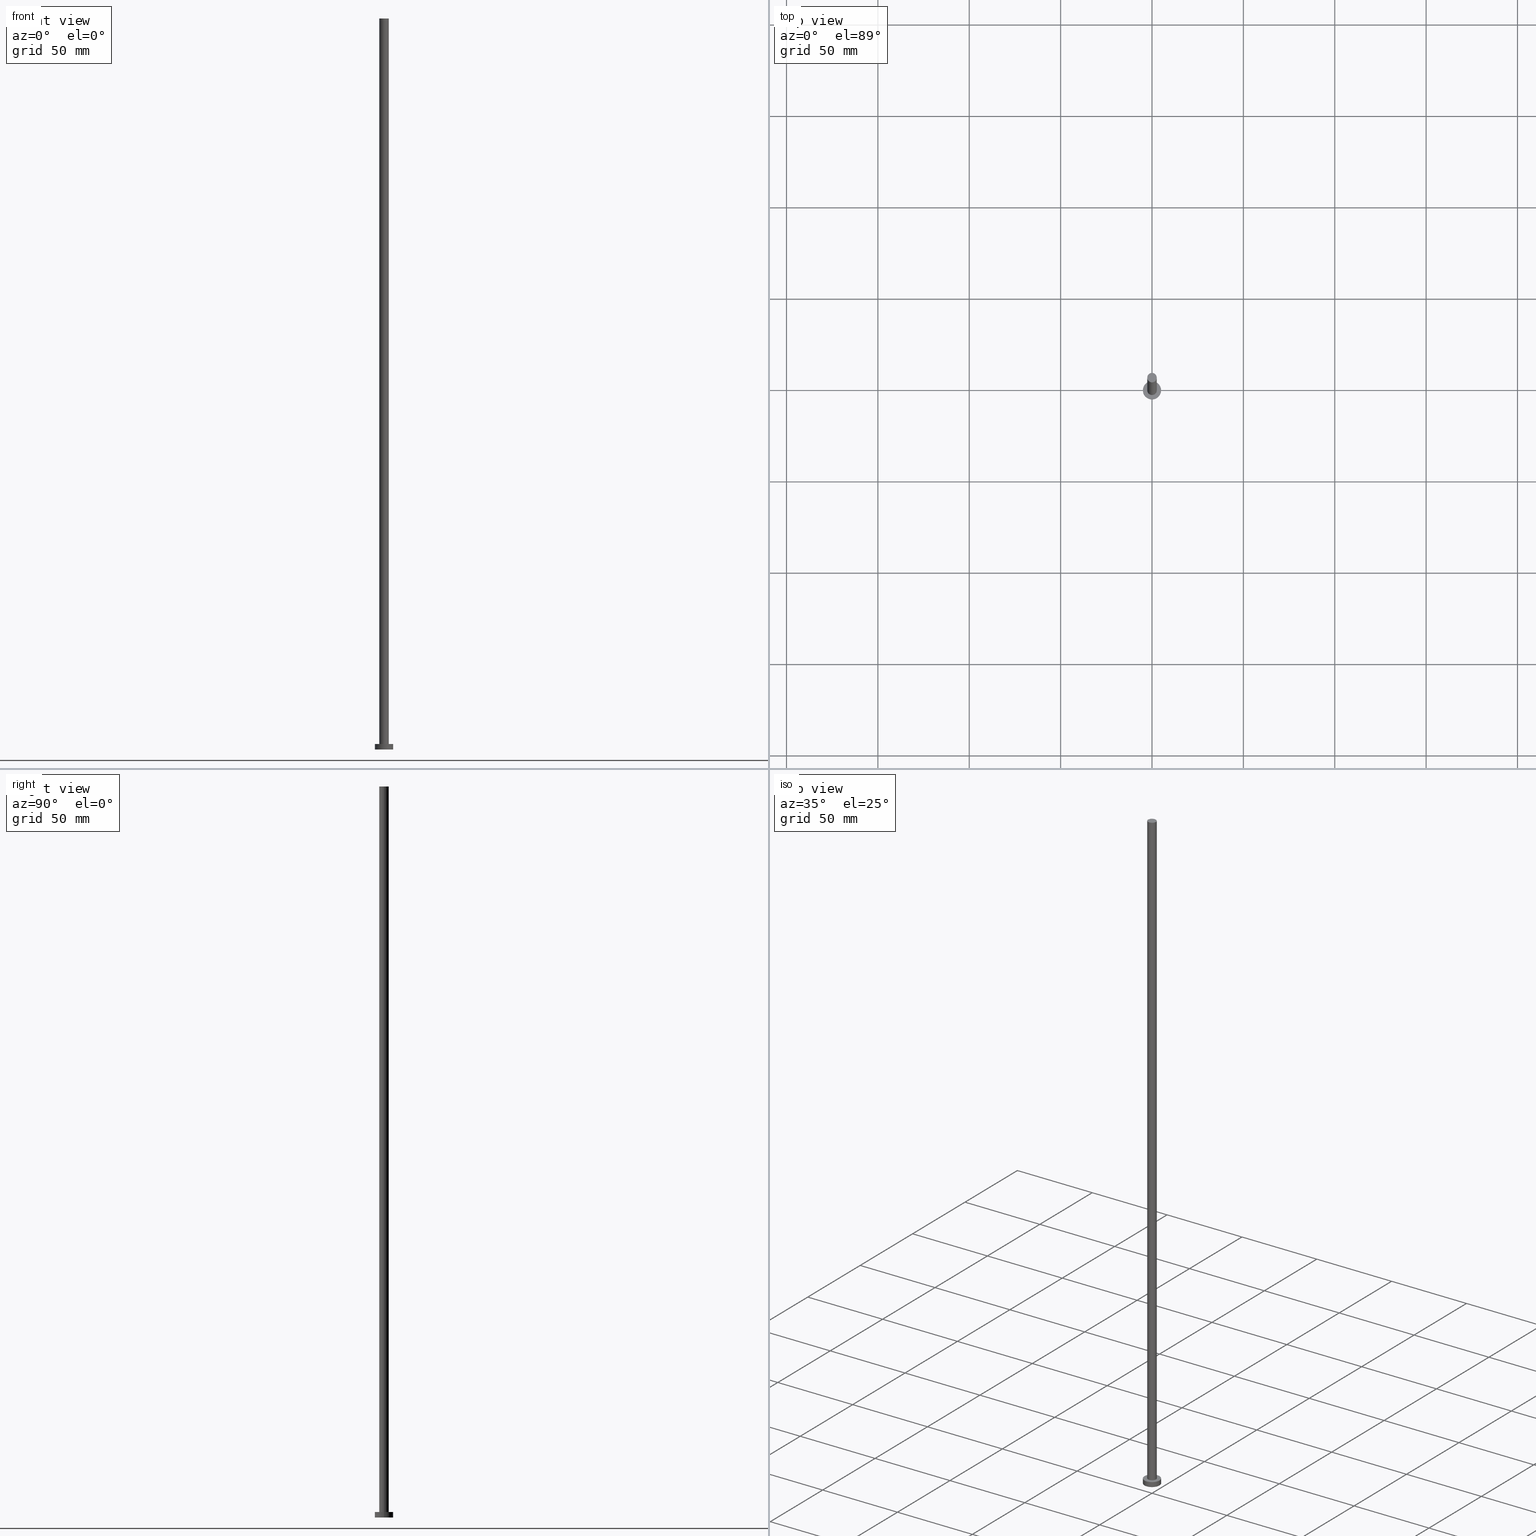
[diagram: canonical four-view strip — front | top / right | iso, engineering-drawing reading convention]
A machine part, canonical four-view strip (front | top / right | iso — engineering-drawing reading convention). The complete STEP part file that produces these views, byte-faithful:
ISO-10303-21;
HEADER;
FILE_DESCRIPTION (( 'STEP AP203' ),
    '1' );
FILE_NAME ('94fb.STEP',
    '2023-02-13T15:48:15',
    ( '' ),
    ( '' ),
    'SwSTEP 2.0',
    'SolidWorks 2019',
    '' );
FILE_SCHEMA (( 'CONFIG_CONTROL_DESIGN' ));
ENDSEC;

DATA;
#1 = SECURITY_CLASSIFICATION ( '', '', #19 ) ;
#2 = PERSON_AND_ORGANIZATION ( #212, #162 ) ;
#3 = ORIENTED_EDGE ( 'NONE', *, *, #57, .F. ) ;
#4 = FACE_OUTER_BOUND ( 'NONE', #155, .T. ) ;
#5 = ADVANCED_FACE ( 'NONE', ( #52 ), #60, .T. ) ;
#6 = CARTESIAN_POINT ( 'NONE',  ( 2.600000000000000089, 3.184081677783118191E-16, 3.000000000000000000 ) ) ;
#7 = CARTESIAN_POINT ( 'NONE',  ( 2.600000000000000089, 3.184081677783118191E-16, 400.0000000000000000 ) ) ;
#8 = CC_DESIGN_PERSON_AND_ORGANIZATION_ASSIGNMENT ( #146, #238, ( #157 ) ) ;
#9 = CARTESIAN_POINT ( 'NONE',  ( 0.000000000000000000, 0.000000000000000000, 400.0000000000000000 ) ) ;
#10 = ORIENTED_EDGE ( 'NONE', *, *, #184, .F. ) ;
#11 = VERTEX_POINT ( 'NONE', #136 ) ;
#12 = MECHANICAL_CONTEXT ( 'NONE', #145, 'mechanical' ) ;
#13 = CARTESIAN_POINT ( 'NONE',  ( -2.600000000000000089, 0.000000000000000000, 3.000000000000000000 ) ) ;
#14 = FACE_OUTER_BOUND ( 'NONE', #233, .T. ) ;
#15 = ADVANCED_BREP_SHAPE_REPRESENTATION ( '94fb', ( #84, #215 ), #46 ) ;
#16 =( LENGTH_UNIT ( ) NAMED_UNIT ( * ) SI_UNIT ( .MILLI., .METRE. ) );
#17 = CIRCLE ( 'NONE', #104, 5.000000000000000000 ) ;
#18 = CC_DESIGN_SECURITY_CLASSIFICATION ( #1, ( #157 ) ) ;
#19 = SECURITY_CLASSIFICATION_LEVEL ( 'unclassified' ) ;
#20 = DATE_TIME_ROLE ( 'classification_date' ) ;
#21 = CARTESIAN_POINT ( 'NONE',  ( 0.000000000000000000, 0.000000000000000000, 3.000000000000000000 ) ) ;
#22 = CIRCLE ( 'NONE', #148, 2.600000000000000089 ) ;
#23 = APPLICATION_PROTOCOL_DEFINITION ( 'international standard', 'config_control_design', 1994, #118 ) ;
#24 = CALENDAR_DATE ( 2023, 13, 2 ) ;
#25 = CARTESIAN_POINT ( 'NONE',  ( 0.000000000000000000, 0.000000000000000000, 400.0000000000000000 ) ) ;
#26 = CIRCLE ( 'NONE', #189, 5.000000000000000000 ) ;
#27 = ORIENTED_EDGE ( 'NONE', *, *, #125, .T. ) ;
#28 = LOCAL_TIME ( 16, 48, 15.00000000000000000, #164 ) ;
#29 = DIRECTION ( 'NONE',  ( 0.000000000000000000, 0.000000000000000000, 1.000000000000000000 ) ) ;
#30 = EDGE_CURVE ( 'NONE', #197, #114, #245, .T. ) ;
#31 = ORIENTED_EDGE ( 'NONE', *, *, #181, .T. ) ;
#32 = DIRECTION ( 'NONE',  ( 1.000000000000000000, 0.000000000000000000, 0.000000000000000000 ) ) ;
#33 = ORIENTED_EDGE ( 'NONE', *, *, #125, .F. ) ;
#34 = APPROVAL ( #106, 'NEUR�EN�' ) ;
#35 = CARTESIAN_POINT ( 'NONE',  ( 5.000000000000000000, 6.123233995736766282E-16, 3.000000000000000000 ) ) ;
#36 = ORIENTED_EDGE ( 'NONE', *, *, #181, .F. ) ;
#37 = CARTESIAN_POINT ( 'NONE',  ( 0.000000000000000000, 0.000000000000000000, 400.0000000000000000 ) ) ;
#38 = CARTESIAN_POINT ( 'NONE',  ( 0.000000000000000000, 0.000000000000000000, 400.0000000000000000 ) ) ;
#39 = EDGE_LOOP ( 'NONE', ( #10, #36, #100, #226 ) ) ;
#40 = ORIENTED_EDGE ( 'NONE', *, *, #94, .F. ) ;
#41 = VERTEX_POINT ( 'NONE', #7 ) ;
#42 = PRODUCT_DEFINITION_SHAPE ( 'NONE', 'NONE',  #79 ) ;
#43 = FACE_OUTER_BOUND ( 'NONE', #39, .T. ) ;
#44 = DIRECTION ( 'NONE',  ( -0.000000000000000000, -0.000000000000000000, -1.000000000000000000 ) ) ;
#45 = APPROVAL_STATUS ( 'not_yet_approved' ) ;
#46 =( GEOMETRIC_REPRESENTATION_CONTEXT ( 3 ) GLOBAL_UNCERTAINTY_ASSIGNED_CONTEXT ( ( #75 ) ) GLOBAL_UNIT_ASSIGNED_CONTEXT ( ( #16, #216, #80 ) ) REPRESENTATION_CONTEXT ( 'NONE', 'WORKASPACE' ) );
#47 = CALENDAR_DATE ( 2023, 13, 2 ) ;
#48 = DIRECTION ( 'NONE',  ( 0.000000000000000000, 0.000000000000000000, 1.000000000000000000 ) ) ;
#49 = EDGE_LOOP ( 'NONE', ( #201, #176 ) ) ;
#50 = DIRECTION ( 'NONE',  ( 1.000000000000000000, 0.000000000000000000, 0.000000000000000000 ) ) ;
#51 = ORIENTED_EDGE ( 'NONE', *, *, #64, .F. ) ;
#52 = FACE_OUTER_BOUND ( 'NONE', #178, .T. ) ;
#53 = CIRCLE ( 'NONE', #96, 2.600000000000000089 ) ;
#54 = VERTEX_POINT ( 'NONE', #135 ) ;
#55 = LOCAL_TIME ( 16, 48, 15.00000000000000000, #126 ) ;
#56 = PERSON_AND_ORGANIZATION ( #212, #162 ) ;
#57 = EDGE_CURVE ( 'NONE', #114, #11, #186, .T. ) ;
#58 = ORIENTED_EDGE ( 'NONE', *, *, #192, .T. ) ;
#59 = ORIENTED_EDGE ( 'NONE', *, *, #57, .T. ) ;
#60 = CYLINDRICAL_SURFACE ( 'NONE', #91, 2.600000000000000089 ) ;
#61 = CARTESIAN_POINT ( 'NONE',  ( 0.000000000000000000, 0.000000000000000000, 400.0000000000000000 ) ) ;
#62 = CARTESIAN_POINT ( 'NONE',  ( 0.000000000000000000, 0.000000000000000000, 0.000000000000000000 ) ) ;
#63 = DIRECTION ( 'NONE',  ( 1.000000000000000000, 0.000000000000000000, -0.000000000000000000 ) ) ;
#64 = EDGE_CURVE ( 'NONE', #11, #54, #26, .T. ) ;
#65 = CARTESIAN_POINT ( 'NONE',  ( 0.000000000000000000, 0.000000000000000000, 3.000000000000000000 ) ) ;
#66 = FACE_OUTER_BOUND ( 'NONE', #251, .T. ) ;
#67 = AXIS2_PLACEMENT_3D ( 'NONE', #116, #253, #199 ) ;
#68 = PERSON_AND_ORGANIZATION_ROLE ( 'design_owner' ) ;
#69 = APPROVAL ( #241, 'NEUR�EN�' ) ;
#70 = DIRECTION ( 'NONE',  ( -0.000000000000000000, -0.000000000000000000, -1.000000000000000000 ) ) ;
#71 = COORDINATED_UNIVERSAL_TIME_OFFSET ( 1, 0, .AHEAD. ) ;
#72 = AXIS2_PLACEMENT_3D ( 'NONE', #213, #48, #63 ) ;
#73 = CC_DESIGN_APPROVAL ( #69, ( #157 ) ) ;
#74 = PERSON_AND_ORGANIZATION_ROLE ( 'creator' ) ;
#75 = UNCERTAINTY_MEASURE_WITH_UNIT (LENGTH_MEASURE( 1.000000000000000082E-05 ), #16, 'distance_accuracy_value', 'NONE');
#76 = PERSON_AND_ORGANIZATION_ROLE ( 'classification_officer' ) ;
#77 = EDGE_LOOP ( 'NONE', ( #51, #149 ) ) ;
#78 = ORIENTED_EDGE ( 'NONE', *, *, #30, .F. ) ;
#79 = PRODUCT_DEFINITION ( 'NEZN�M�', '', #157, #223 ) ;
#80 =( NAMED_UNIT ( * ) SI_UNIT ( $, .STERADIAN. ) SOLID_ANGLE_UNIT ( ) );
#81 = VERTEX_POINT ( 'NONE', #6 ) ;
#82 = CARTESIAN_POINT ( 'NONE',  ( -2.600000000000000089, 0.000000000000000000, 400.0000000000000000 ) ) ;
#83 = CARTESIAN_POINT ( 'NONE',  ( 0.000000000000000000, 0.000000000000000000, 3.000000000000000000 ) ) ;
#84 = MANIFOLD_SOLID_BREP ( 'P�idat vysunut�m3', #167 ) ;
#85 = DIRECTION ( 'NONE',  ( -0.000000000000000000, -0.000000000000000000, -1.000000000000000000 ) ) ;
#86 = AXIS2_PLACEMENT_3D ( 'NONE', #9, #123, #230 ) ;
#87 = LOCAL_TIME ( 16, 48, 15.00000000000000000, #111 ) ;
#88 = CC_DESIGN_DATE_AND_TIME_ASSIGNMENT ( #168, #20, ( #1 ) ) ;
#89 = DATE_AND_TIME ( #107, #55 ) ;
#90 = CARTESIAN_POINT ( 'NONE',  ( 0.000000000000000000, 0.000000000000000000, 0.000000000000000000 ) ) ;
#91 = AXIS2_PLACEMENT_3D ( 'NONE', #25, #110, #174 ) ;
#92 = APPROVAL_ROLE ( '' ) ;
#93 = DIRECTION ( 'NONE',  ( 0.000000000000000000, 0.000000000000000000, 1.000000000000000000 ) ) ;
#94 = EDGE_CURVE ( 'NONE', #114, #197, #17, .T. ) ;
#95 = CALENDAR_DATE ( 2023, 13, 2 ) ;
#96 = AXIS2_PLACEMENT_3D ( 'NONE', #232, #103, #156 ) ;
#97 = CIRCLE ( 'NONE', #235, 2.600000000000000089 ) ;
#98 = AXIS2_PLACEMENT_3D ( 'NONE', #183, #44, #142 ) ;
#99 = CC_DESIGN_PERSON_AND_ORGANIZATION_ASSIGNMENT ( #188, #74, ( #157 ) ) ;
#100 = ORIENTED_EDGE ( 'NONE', *, *, #247, .T. ) ;
#101 = APPROVAL_PERSON_ORGANIZATION ( #2, #69, #92 ) ;
#102 = CARTESIAN_POINT ( 'NONE',  ( 5.000000000000000000, 6.123233995736766282E-16, 3.000000000000000000 ) ) ;
#103 = DIRECTION ( 'NONE',  ( 0.000000000000000000, 0.000000000000000000, 1.000000000000000000 ) ) ;
#104 = AXIS2_PLACEMENT_3D ( 'NONE', #246, #248, #143 ) ;
#105 = APPLICATION_PROTOCOL_DEFINITION ( 'international standard', 'config_control_design', 1994, #145 ) ;
#106 = APPROVAL_STATUS ( 'not_yet_approved' ) ;
#107 = CALENDAR_DATE ( 2023, 13, 2 ) ;
#108 = EDGE_CURVE ( 'NONE', #81, #117, #205, .T. ) ;
#109 = DATE_AND_TIME ( #47, #115 ) ;
#110 = DIRECTION ( 'NONE',  ( -0.000000000000000000, -0.000000000000000000, -1.000000000000000000 ) ) ;
#111 = COORDINATED_UNIVERSAL_TIME_OFFSET ( 1, 0, .AHEAD. ) ;
#112 = ADVANCED_FACE ( 'NONE', ( #240 ), #224, .F. ) ;
#113 = APPROVAL_PERSON_ORGANIZATION ( #128, #154, #190 ) ;
#114 = VERTEX_POINT ( 'NONE', #254 ) ;
#115 = LOCAL_TIME ( 16, 48, 15.00000000000000000, #71 ) ;
#116 = CARTESIAN_POINT ( 'NONE',  ( 0.000000000000000000, 0.000000000000000000, 0.000000000000000000 ) ) ;
#117 = VERTEX_POINT ( 'NONE', #13 ) ;
#118 = APPLICATION_CONTEXT ( 'configuration controlled 3d designs of mechanical parts and assemblies' ) ;
#119 = DIRECTION ( 'NONE',  ( -0.000000000000000000, -0.000000000000000000, -1.000000000000000000 ) ) ;
#120 = DIRECTION ( 'NONE',  ( -0.000000000000000000, -0.000000000000000000, -1.000000000000000000 ) ) ;
#121 = VECTOR ( 'NONE', #70, 1000.000000000000000 ) ;
#122 = DIRECTION ( 'NONE',  ( 1.000000000000000000, 0.000000000000000000, 0.000000000000000000 ) ) ;
#123 = DIRECTION ( 'NONE',  ( 0.000000000000000000, 0.000000000000000000, 1.000000000000000000 ) ) ;
#124 = ORIENTED_EDGE ( 'NONE', *, *, #64, .T. ) ;
#125 = EDGE_CURVE ( 'NONE', #41, #139, #97, .T. ) ;
#126 = COORDINATED_UNIVERSAL_TIME_OFFSET ( 1, 0, .AHEAD. ) ;
#127 = ADVANCED_FACE ( 'NONE', ( #4 ), #239, .T. ) ;
#128 = PERSON_AND_ORGANIZATION ( #212, #162 ) ;
#129 = VECTOR ( 'NONE', #85, 1000.000000000000000 ) ;
#130 = ORIENTED_EDGE ( 'NONE', *, *, #108, .T. ) ;
#131 = AXIS2_PLACEMENT_3D ( 'NONE', #217, #138, #144 ) ;
#132 = SHAPE_DEFINITION_REPRESENTATION ( #42, #15 ) ;
#133 = CC_DESIGN_PERSON_AND_ORGANIZATION_ASSIGNMENT ( #211, #76, ( #1 ) ) ;
#134 = EDGE_LOOP ( 'NONE', ( #228, #180 ) ) ;
#135 = CARTESIAN_POINT ( 'NONE',  ( 5.000000000000000000, 6.123233995736766282E-16, 0.000000000000000000 ) ) ;
#136 = CARTESIAN_POINT ( 'NONE',  ( -5.000000000000000000, 0.000000000000000000, 0.000000000000000000 ) ) ;
#137 = CC_DESIGN_APPROVAL ( #34, ( #1 ) ) ;
#138 = DIRECTION ( 'NONE',  ( 0.000000000000000000, 0.000000000000000000, 1.000000000000000000 ) ) ;
#139 = VERTEX_POINT ( 'NONE', #187 ) ;
#140 = DIRECTION ( 'NONE',  ( -1.000000000000000000, 0.000000000000000000, 0.000000000000000000 ) ) ;
#141 = LINE ( 'NONE', #159, #173 ) ;
#142 = DIRECTION ( 'NONE',  ( -1.000000000000000000, 0.000000000000000000, 0.000000000000000000 ) ) ;
#143 = DIRECTION ( 'NONE',  ( 1.000000000000000000, 0.000000000000000000, 0.000000000000000000 ) ) ;
#144 = DIRECTION ( 'NONE',  ( 1.000000000000000000, 0.000000000000000000, -0.000000000000000000 ) ) ;
#145 = APPLICATION_CONTEXT ( 'configuration controlled 3d designs of mechanical parts and assemblies' ) ;
#146 = PERSON_AND_ORGANIZATION ( #212, #162 ) ;
#147 = PERSON_AND_ORGANIZATION ( #212, #162 ) ;
#148 = AXIS2_PLACEMENT_3D ( 'NONE', #61, #182, #204 ) ;
#149 = ORIENTED_EDGE ( 'NONE', *, *, #192, .F. ) ;
#150 = EDGE_CURVE ( 'NONE', #117, #81, #53, .T. ) ;
#151 = APPROVAL_DATE_TIME ( #222, #34 ) ;
#152 = APPROVAL_PERSON_ORGANIZATION ( #147, #34, #237 ) ;
#153 = ORIENTED_EDGE ( 'NONE', *, *, #184, .T. ) ;
#154 = APPROVAL ( #45, 'NEUR�EN�' ) ;
#155 = EDGE_LOOP ( 'NONE', ( #78, #160, #58, #3 ) ) ;
#156 = DIRECTION ( 'NONE',  ( 1.000000000000000000, 0.000000000000000000, 0.000000000000000000 ) ) ;
#157 = PRODUCT_DEFINITION_FORMATION_WITH_SPECIFIED_SOURCE ( 'LIBOVOLN�', '', #236, .NOT_KNOWN. ) ;
#158 = PLANE ( 'NONE',  #86 ) ;
#159 = CARTESIAN_POINT ( 'NONE',  ( 2.600000000000000089, 3.184081677783118191E-16, 400.0000000000000000 ) ) ;
#160 = ORIENTED_EDGE ( 'NONE', *, *, #221, .T. ) ;
#161 = AXIS2_PLACEMENT_3D ( 'NONE', #83, #198, #50 ) ;
#162 = ORGANIZATION ( 'NEUR�EN�', 'NEUR�EN�', '' ) ;
#163 = LINE ( 'NONE', #82, #129 ) ;
#164 = COORDINATED_UNIVERSAL_TIME_OFFSET ( 1, 0, .AHEAD. ) ;
#165 = PERSON_AND_ORGANIZATION ( #212, #162 ) ;
#166 = CC_DESIGN_PERSON_AND_ORGANIZATION_ASSIGNMENT ( #56, #68, ( #236 ) ) ;
#167 = CLOSED_SHELL ( 'NONE', ( #5, #127, #193, #202, #112, #229, #170 ) ) ;
#168 = DATE_AND_TIME ( #242, #244 ) ;
#169 = COORDINATED_UNIVERSAL_TIME_OFFSET ( 1, 0, .AHEAD. ) ;
#170 = ADVANCED_FACE ( 'NONE', ( #66 ), #158, .T. ) ;
#171 = DIRECTION ( 'NONE',  ( 1.000000000000000000, 0.000000000000000000, 0.000000000000000000 ) ) ;
#172 = CARTESIAN_POINT ( 'NONE',  ( -5.000000000000000000, 0.000000000000000000, 3.000000000000000000 ) ) ;
#173 = VECTOR ( 'NONE', #250, 1000.000000000000000 ) ;
#174 = DIRECTION ( 'NONE',  ( -1.000000000000000000, 0.000000000000000000, 0.000000000000000000 ) ) ;
#175 = CC_DESIGN_DATE_AND_TIME_ASSIGNMENT ( #185, #206, ( #79 ) ) ;
#176 = ORIENTED_EDGE ( 'NONE', *, *, #108, .F. ) ;
#177 = FACE_BOUND ( 'NONE', #49, .T. ) ;
#178 = EDGE_LOOP ( 'NONE', ( #33, #153, #130, #210 ) ) ;
#179 = PLANE ( 'NONE',  #131 ) ;
#180 = ORIENTED_EDGE ( 'NONE', *, *, #30, .T. ) ;
#181 = EDGE_CURVE ( 'NONE', #139, #41, #22, .T. ) ;
#182 = DIRECTION ( 'NONE',  ( 0.000000000000000000, 0.000000000000000000, 1.000000000000000000 ) ) ;
#183 = CARTESIAN_POINT ( 'NONE',  ( 0.000000000000000000, 0.000000000000000000, 3.000000000000000000 ) ) ;
#184 = EDGE_CURVE ( 'NONE', #41, #81, #141, .T. ) ;
#185 = DATE_AND_TIME ( #95, #87 ) ;
#186 = LINE ( 'NONE', #172, #121 ) ;
#187 = CARTESIAN_POINT ( 'NONE',  ( -2.600000000000000089, 0.000000000000000000, 400.0000000000000000 ) ) ;
#188 = PERSON_AND_ORGANIZATION ( #212, #162 ) ;
#189 = AXIS2_PLACEMENT_3D ( 'NONE', #90, #29, #171 ) ;
#190 = APPROVAL_ROLE ( '' ) ;
#191 = APPROVAL_DATE_TIME ( #109, #69 ) ;
#192 = EDGE_CURVE ( 'NONE', #54, #11, #209, .T. ) ;
#193 = ADVANCED_FACE ( 'NONE', ( #14 ), #220, .T. ) ;
#194 = DIRECTION ( 'NONE',  ( 1.000000000000000000, 0.000000000000000000, 0.000000000000000000 ) ) ;
#195 = AXIS2_PLACEMENT_3D ( 'NONE', #65, #119, #140 ) ;
#196 = CC_DESIGN_APPROVAL ( #154, ( #79 ) ) ;
#197 = VERTEX_POINT ( 'NONE', #102 ) ;
#198 = DIRECTION ( 'NONE',  ( 0.000000000000000000, 0.000000000000000000, 1.000000000000000000 ) ) ;
#199 = DIRECTION ( 'NONE',  ( 1.000000000000000000, 0.000000000000000000, 0.000000000000000000 ) ) ;
#200 = DIRECTION ( 'NONE',  ( 0.000000000000000000, 0.000000000000000000, 1.000000000000000000 ) ) ;
#201 = ORIENTED_EDGE ( 'NONE', *, *, #150, .F. ) ;
#202 = ADVANCED_FACE ( 'NONE', ( #177, #219 ), #179, .T. ) ;
#203 = DIRECTION ( 'NONE',  ( -0.000000000000000000, -0.000000000000000000, -1.000000000000000000 ) ) ;
#204 = DIRECTION ( 'NONE',  ( 1.000000000000000000, 0.000000000000000000, 0.000000000000000000 ) ) ;
#205 = CIRCLE ( 'NONE', #161, 2.600000000000000089 ) ;
#206 = DATE_TIME_ROLE ( 'creation_date' ) ;
#207 = PERSON_AND_ORGANIZATION_ROLE ( 'creator' ) ;
#208 = APPROVAL_DATE_TIME ( #89, #154 ) ;
#209 = CIRCLE ( 'NONE', #67, 5.000000000000000000 ) ;
#210 = ORIENTED_EDGE ( 'NONE', *, *, #247, .F. ) ;
#211 = PERSON_AND_ORGANIZATION ( #212, #162 ) ;
#212 = PERSON ( 'NEUR�EN�', 'NEUR�EN�', 'NEUR�EN�', ('NEUR�EN�'), ('NEUR�EN�'), ('NEUR�EN�') ) ;
#213 = CARTESIAN_POINT ( 'NONE',  ( 0.000000000000000000, 0.000000000000000000, 0.000000000000000000 ) ) ;
#214 = AXIS2_PLACEMENT_3D ( 'NONE', #38, #120, #255 ) ;
#215 = AXIS2_PLACEMENT_3D ( 'NONE', #62, #218, #122 ) ;
#216 =( NAMED_UNIT ( * ) PLANE_ANGLE_UNIT ( ) SI_UNIT ( $, .RADIAN. ) );
#217 = CARTESIAN_POINT ( 'NONE',  ( 0.000000000000000000, 0.000000000000000000, 3.000000000000000000 ) ) ;
#218 = DIRECTION ( 'NONE',  ( 0.000000000000000000, 0.000000000000000000, 1.000000000000000000 ) ) ;
#219 = FACE_OUTER_BOUND ( 'NONE', #134, .T. ) ;
#220 = CYLINDRICAL_SURFACE ( 'NONE', #98, 5.000000000000000000 ) ;
#221 = EDGE_CURVE ( 'NONE', #197, #54, #231, .T. ) ;
#222 = DATE_AND_TIME ( #24, #28 ) ;
#223 = DESIGN_CONTEXT ( 'detailed design', #118, 'design' ) ;
#224 = PLANE ( 'NONE',  #72 ) ;
#225 = CC_DESIGN_PERSON_AND_ORGANIZATION_ASSIGNMENT ( #165, #207, ( #79 ) ) ;
#226 = ORIENTED_EDGE ( 'NONE', *, *, #150, .T. ) ;
#227 = VECTOR ( 'NONE', #203, 1000.000000000000000 ) ;
#228 = ORIENTED_EDGE ( 'NONE', *, *, #94, .T. ) ;
#229 = ADVANCED_FACE ( 'NONE', ( #43 ), #234, .T. ) ;
#230 = DIRECTION ( 'NONE',  ( 1.000000000000000000, 0.000000000000000000, -0.000000000000000000 ) ) ;
#231 = LINE ( 'NONE', #35, #227 ) ;
#232 = CARTESIAN_POINT ( 'NONE',  ( 0.000000000000000000, 0.000000000000000000, 3.000000000000000000 ) ) ;
#233 = EDGE_LOOP ( 'NONE', ( #252, #40, #59, #124 ) ) ;
#234 = CYLINDRICAL_SURFACE ( 'NONE', #214, 2.600000000000000089 ) ;
#235 = AXIS2_PLACEMENT_3D ( 'NONE', #37, #200, #194 ) ;
#236 = PRODUCT ( '94fb', '94fb', '', ( #12 ) ) ;
#237 = APPROVAL_ROLE ( '' ) ;
#238 = PERSON_AND_ORGANIZATION_ROLE ( 'design_supplier' ) ;
#239 = CYLINDRICAL_SURFACE ( 'NONE', #195, 5.000000000000000000 ) ;
#240 = FACE_OUTER_BOUND ( 'NONE', #77, .T. ) ;
#241 = APPROVAL_STATUS ( 'not_yet_approved' ) ;
#242 = CALENDAR_DATE ( 2023, 13, 2 ) ;
#243 = PRODUCT_RELATED_PRODUCT_CATEGORY ( 'detail', '', ( #236 ) ) ;
#244 = LOCAL_TIME ( 16, 48, 15.00000000000000000, #169 ) ;
#245 = CIRCLE ( 'NONE', #249, 5.000000000000000000 ) ;
#246 = CARTESIAN_POINT ( 'NONE',  ( 0.000000000000000000, 0.000000000000000000, 3.000000000000000000 ) ) ;
#247 = EDGE_CURVE ( 'NONE', #139, #117, #163, .T. ) ;
#248 = DIRECTION ( 'NONE',  ( 0.000000000000000000, 0.000000000000000000, 1.000000000000000000 ) ) ;
#249 = AXIS2_PLACEMENT_3D ( 'NONE', #21, #93, #32 ) ;
#250 = DIRECTION ( 'NONE',  ( -0.000000000000000000, -0.000000000000000000, -1.000000000000000000 ) ) ;
#251 = EDGE_LOOP ( 'NONE', ( #31, #27 ) ) ;
#252 = ORIENTED_EDGE ( 'NONE', *, *, #221, .F. ) ;
#253 = DIRECTION ( 'NONE',  ( 0.000000000000000000, 0.000000000000000000, 1.000000000000000000 ) ) ;
#254 = CARTESIAN_POINT ( 'NONE',  ( -5.000000000000000000, 0.000000000000000000, 3.000000000000000000 ) ) ;
#255 = DIRECTION ( 'NONE',  ( -1.000000000000000000, 0.000000000000000000, 0.000000000000000000 ) ) ;
ENDSEC;
END-ISO-10303-21;
